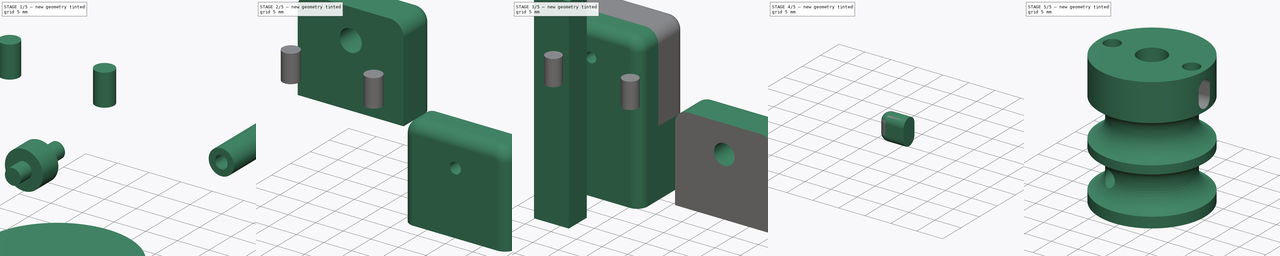
[diagram: build sequence overview — one tinted view per stage of 5, left to right]
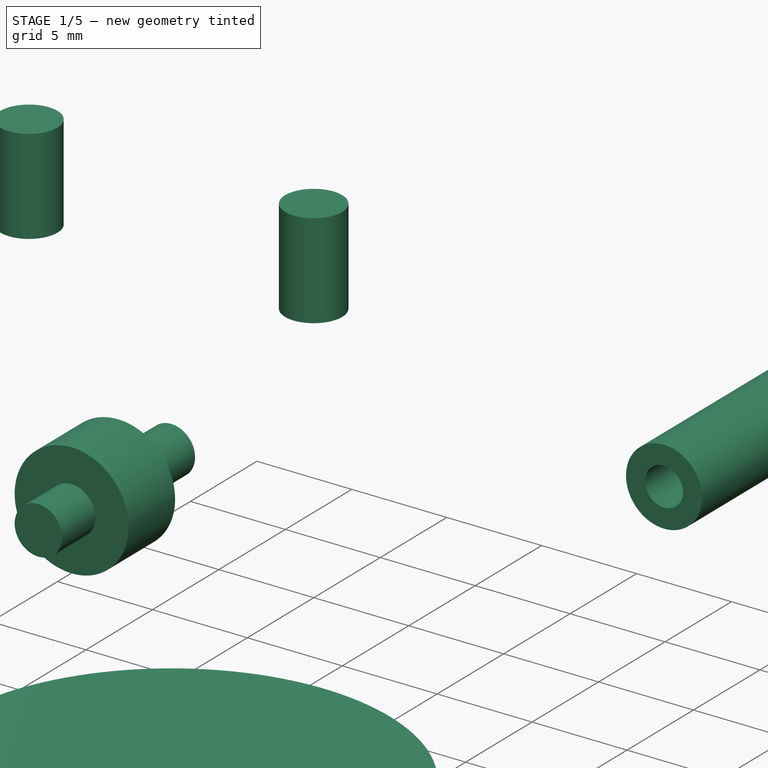
[diagram: stage 1 of 5 — iso view after this stage's code; geometry added in this stage tinted green]
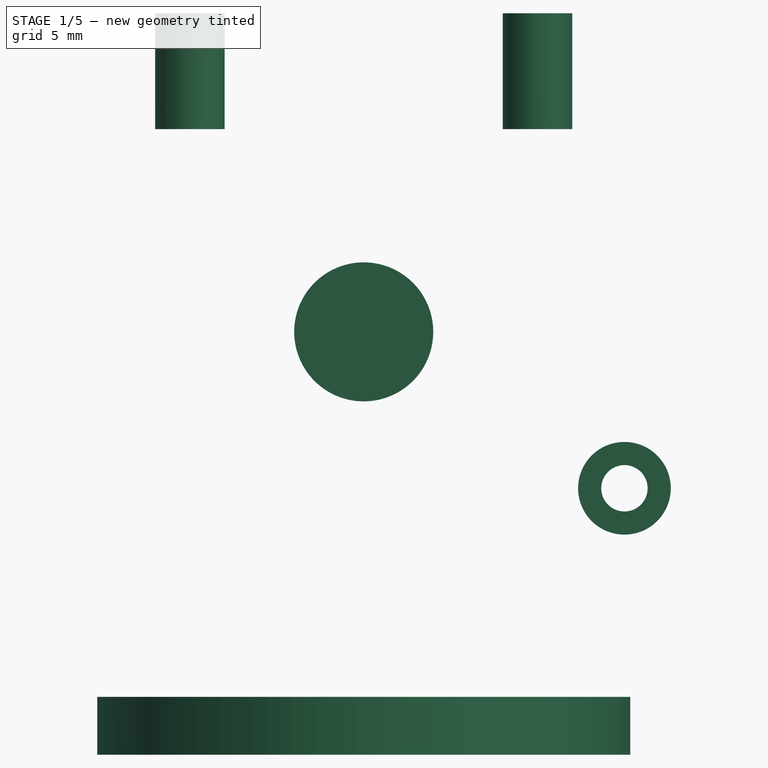
[diagram: stage 1 of 5 — front view after this stage's code; geometry added in this stage tinted green]
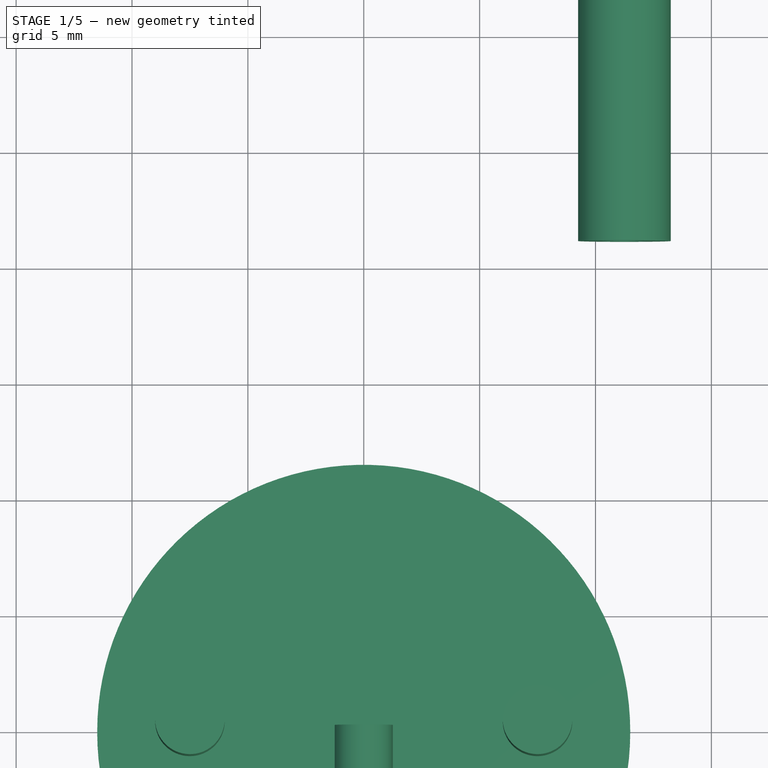
[diagram: stage 1 of 5 — top view after this stage's code; geometry added in this stage tinted green]
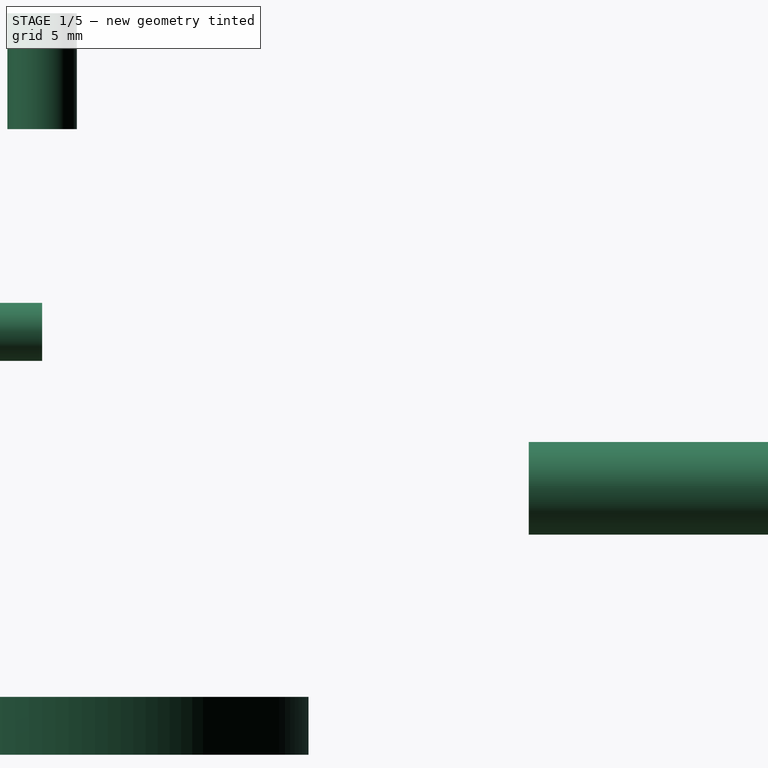
[diagram: stage 1 of 5 — right view after this stage's code; geometry added in this stage tinted green]
FCSTD DOCUMENT  (FreeCAD 0.20R29410 (Git))
Label: v2 boden actuator driver
License: All rights reserved
LicenseURL: http://en.wikipedia.org/wiki/All_rights_reserved
objects: Sketcher::SketchObject×17, Part::Extrusion×15, Part::Cut×7, Part::Fillet×7, Part::MultiFuse×4, Part::Revolution×2, Part::Feature×1, Part::FeaturePython×1, Part::Mirroring×1
note: 55 computed .brp shape members not serialized (recipe doc carries the construction recipe); baked Part::Feature solids carry a one-line shape summary decoded from their .brp

FEATURE [Part::Feature] Part__Feature005  label="nema 17x48 motor"
  shape: bbox 42.3 x 42.3 x 74 mm, 70 faces (baked)
FEATURE [Sketcher::SketchObject] Sketch
  ExternalGeometry = -> [Part__Feature005]
  FullyConstrained = true
  Placement = pos=(0,0,0) rot=(1,0,0;1.5708rad)
  sketch-geometry (11):
    g0: LineSegment StartX=2.5 StartY=7 StartZ=0 EndX=2.5 EndY=26 EndZ=0
    g1: LineSegment StartX=2.5 StartY=7 StartZ=0 EndX=11.25 EndY=7 EndZ=0
    g2: LineSegment StartX=0 StartY=31 StartZ=0 EndX=11.25 EndY=31 EndZ=0
    g3: LineSegment StartX=11.25 StartY=31 StartZ=0 EndX=11.25 EndY=27 EndZ=0
    g4: LineSegment StartX=11.25 StartY=7 StartZ=0 EndX=11.25 EndY=9.5 EndZ=0
    g5: LineSegment StartX=7.5 StartY=23.25 StartZ=0 EndX=7.5 EndY=13.25 EndZ=0
    g6: ArcOfCircle CenterX=11.25 CenterY=23.25 CenterZ=0 NormalX=0 NormalY=0 NormalZ=1 AngleXU=0 Radius=3.75 StartAngle=1.5708 EndAngle=3.14159
    g7: ArcOfCircle CenterX=11.25 CenterY=13.25 CenterZ=0 NormalX=0 NormalY=0 NormalZ=1 AngleXU=0 Radius=3.75 StartAngle=3.14159 EndAngle=4.71239
    g8: LineSegment StartX=0 StartY=31 StartZ=0 EndX=0 EndY=26.5 EndZ=0
    g9: LineSegment StartX=0 StartY=26.5 StartZ=0 EndX=2 EndY=26.5 EndZ=0
    g10: ArcOfCircle CenterX=2 CenterY=26 CenterZ=0 NormalX=0 NormalY=0 NormalZ=1 AngleXU=0 Radius=0.5 StartAngle=-2.7e-15 EndAngle=1.5708
  constraints (33):
    c: Vertical(g0)
    c: Coincident(g1,g0)
    c: Horizontal(g1)
    c: Horizontal(g2)
    c: Coincident(g3,g2)
    c: Vertical(g3)
    c: Coincident(g4,g1)
    c: Vertical(g4)
    c: Vertical(g5)
    c: Coincident(g6,g3)
    c: Coincident(g7,g4)
    c: Tangent(g7,g5) = -1.5708
    c: Tangent(g5,g6) = -1.5708
    c: PointOnObject(g6,g4)
    c: PointOnObject(g7,g4)
    c: PointOnObject(g6,g3)
    c: DistanceY(g4,g4) = 2.5
    c: Diameter(g7) = 7.5
    c: DistanceX(g0) = 2.5
    c: DistanceX(g-3) = -2.5
    c: DistanceY(g-4,g1) = 7
    c: DistanceX(g5) = 7.5
    c: DistanceY(g-3,g2) = 5
    c: PointOnObject(g2,g-2)
    c: Coincident(g8,g2)
    c: Vertical(g8)
    c: Coincident(g9,g8)
    c: Horizontal(g9)
    c: Tangent(g0,g10) = -1.5708
    c: Tangent(g9,g10) = 1.5708
    c: Diameter(g10) = 1
    c: PointOnObject(g0,g-3)
    c: DistanceY(g9,g3) = 0.5
FEATURE [Part::Revolution] Revolve
  Angle = 360
  Axis = (0,0,1)
  Base = (0,0,0)
  FaceMakerClass = Part::FaceMakerBullseye
  Solid = true
  Source = -> Sketch
  Symmetric = false
FEATURE [Sketcher::SketchObject] Sketch001
  ExternalGeometry = -> [Revolve]
  FullyConstrained = true
  Placement = pos=(0,0,0) rot=(1,0,0;1.5708rad)
  sketch-geometry (6):
    g0: LineSegment StartX=7.5 StartY=13.25 StartZ=0 EndX=7.5 EndY=23.25 EndZ=0
    g1: LineSegment StartX=7.5 StartY=23.25 StartZ=0 EndX=-7.5 EndY=23.25 EndZ=0
    g2: LineSegment StartX=-7.5 StartY=23.25 StartZ=0 EndX=-7.5 EndY=13.25 EndZ=0
    g3: LineSegment StartX=-7.5 StartY=13.25 StartZ=0 EndX=7.5 EndY=13.25 EndZ=0
    g4: GeomPoint X=5.87e-14 Y=18.25 Z=0
    g5: Circle CenterX=5.87e-14 CenterY=18.25 CenterZ=0 NormalX=0 NormalY=0 NormalZ=1 AngleXU=0 Radius=1.25
  constraints (13):
    c: Coincident(g0,g1)
    c: Coincident(g1,g2)
    c: Coincident(g2,g3)
    c: Coincident(g3,g0)
    c: Horizontal(g1)
    c: Horizontal(g3)
    c: Vertical(g0)
    c: Vertical(g2)
    c: Symmetric(g1,g0,g4)
    c: Coincident(g1,g-3)
    c: Coincident(g5,g4)
    c: Diameter(g5) = 2.5
    c: Coincident(g-4,g0)
FEATURE [Part::Extrusion] Extrude
  Base = -> Sketch001
  Dir = (0,-1,-3e-16)
  DirMode = 2
  FaceMakerClass = Part::FaceMakerBullseye
  LengthFwd = 10
  LengthRev = 0
  Solid = true
  Symmetric = false
FEATURE [Sketcher::SketchObject] Sketch002
  ExternalGeometry = -> [Revolve]
  FullyConstrained = true
  Placement = pos=(0,0,0) rot=(1,0,0;1.5708rad)
  sketch-geometry (6):
    g0: LineSegment StartX=7.5 StartY=13.25 StartZ=0 EndX=7.5 EndY=23.25 EndZ=0
    g1: LineSegment StartX=7.5 StartY=23.25 StartZ=0 EndX=-7.5 EndY=23.25 EndZ=0
    g2: LineSegment StartX=-7.5 StartY=23.25 StartZ=0 EndX=-7.5 EndY=13.25 EndZ=0
    g3: LineSegment StartX=-7.5 StartY=13.25 StartZ=0 EndX=7.5 EndY=13.25 EndZ=0
    g4: GeomPoint X=5.86e-14 Y=18.25 Z=0
    g5: Circle CenterX=5.86e-14 CenterY=18.25 CenterZ=0 NormalX=0 NormalY=0 NormalZ=1 AngleXU=0 Radius=3
  constraints (13):
    c: Coincident(g0,g1)
    c: Coincident(g1,g2)
    c: Coincident(g2,g3)
    c: Coincident(g3,g0)
    c: Horizontal(g1)
    c: Horizontal(g3)
    c: Vertical(g0)
    c: Vertical(g2)
    c: Symmetric(g1,g0,g4)
    c: Coincident(g1,g-3)
    c: Coincident(g5,g4)
    c: Diameter(g5) = 6
    c: Coincident(g-4,g0)
FEATURE [Part::Extrusion] Extrude001
  Base = -> Sketch002
  Dir = (0,-1,2e-16)
  DirMode = 2
  FaceMakerClass = Part::FaceMakerBullseye
  LengthFwd = 7.5
  LengthRev = -4
  Solid = true
  Symmetric = false
FEATURE [Part::MultiFuse] Fusion
  Shapes = -> [Extrude,Extrude001]
FEATURE [Sketcher::SketchObject] Sketch005
  FullyConstrained = true
  MapMode = 5
  Support = -> [Part__Feature005]
  sketch-geometry (1):
    g0: Circle CenterX=0 CenterY=0 CenterZ=0 NormalX=0 NormalY=0 NormalZ=1 AngleXU=0 Radius=11.5
  constraints (2):
    c: Coincident(g0,g-1)
    c: Diameter(g0) = 23
FEATURE [Part::Extrusion] Extrude003
  Base = -> Sketch005
  Dir = (0,0,1)
  DirMode = 2
  FaceMakerClass = Part::FaceMakerBullseye
  LengthFwd = 2.5
  LengthRev = 0
  Solid = true
  Symmetric = false
FEATURE [Part::FeaturePython] Tube  label="bike shift cable housing"  # WARN: FeaturePython — macro-defined, semantics opaque (R4)
  AttacherType = Attacher::AttachEngine3D
  Height = 20
  InnerRadius = 1
  OuterRadius = 2
  Placement = pos=(11.25,21,11.5) rot=(-1,0,0;1.5708rad)
FEATURE [Sketcher::SketchObject] Sketch026
  FullyConstrained = true
  sketch-geometry (4):
    g0: Circle CenterX=7.5 CenterY=0 CenterZ=0 NormalX=0 NormalY=0 NormalZ=1 AngleXU=0 Radius=1.5
    g1: Circle CenterX=-7.5 CenterY=0 CenterZ=0 NormalX=0 NormalY=0 NormalZ=1 AngleXU=0 Radius=1.5
    g2: LineSegment StartX=0 StartY=0 StartZ=0 EndX=7.5 EndY=0 EndZ=0
    g3: LineSegment StartX=0 StartY=0 StartZ=0 EndX=-7.5 EndY=0 EndZ=0
  constraints (10):
    c: PointOnObject(g0,g-1)
    c: PointOnObject(g1,g-1)
    c: Equal(g1,g0)
    c: Diameter(g1) = 3
    c: Coincident(g2,g-1)
    c: Coincident(g3,g2)
    c: Coincident(g3,g1)
    c: Coincident(g2,g0)
    c: Equal(g2,g3)
    c: DistanceX(g3,g3) = 7.5
FEATURE [Part::Extrusion] Extrude020
  Base = -> Sketch026
  Dir = (0,0,1)
  DirMode = 2
  FaceMakerClass = Part::FaceMakerBullseye
  LengthFwd = 0
  LengthRev = 5
  Placement = pos=(0,0,32) rot=(0,0,1;0rad)
  Solid = true
  Symmetric = false
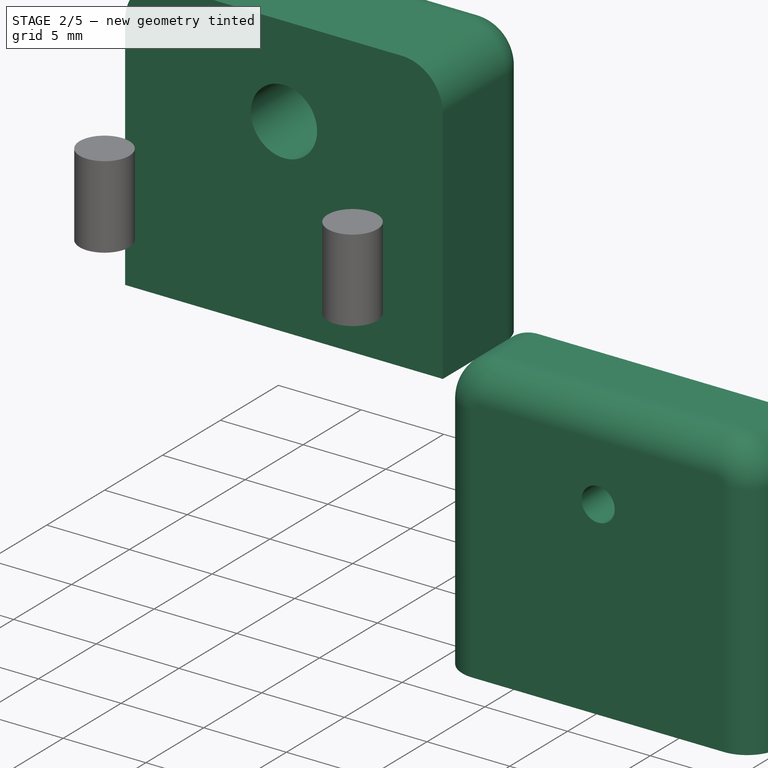
[diagram: stage 2 of 5 — iso view after this stage's code; geometry added in this stage tinted green]
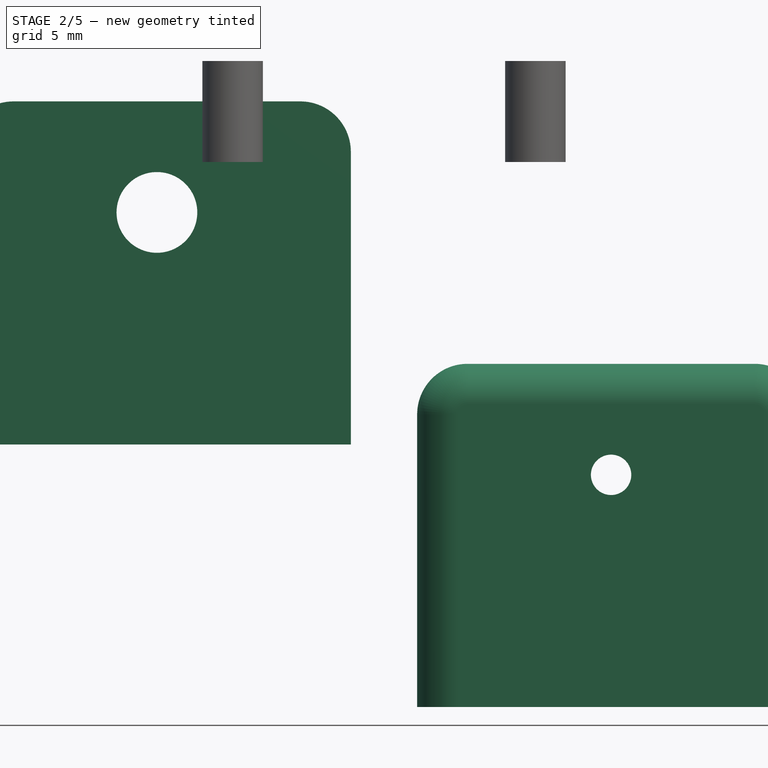
[diagram: stage 2 of 5 — front view after this stage's code; geometry added in this stage tinted green]
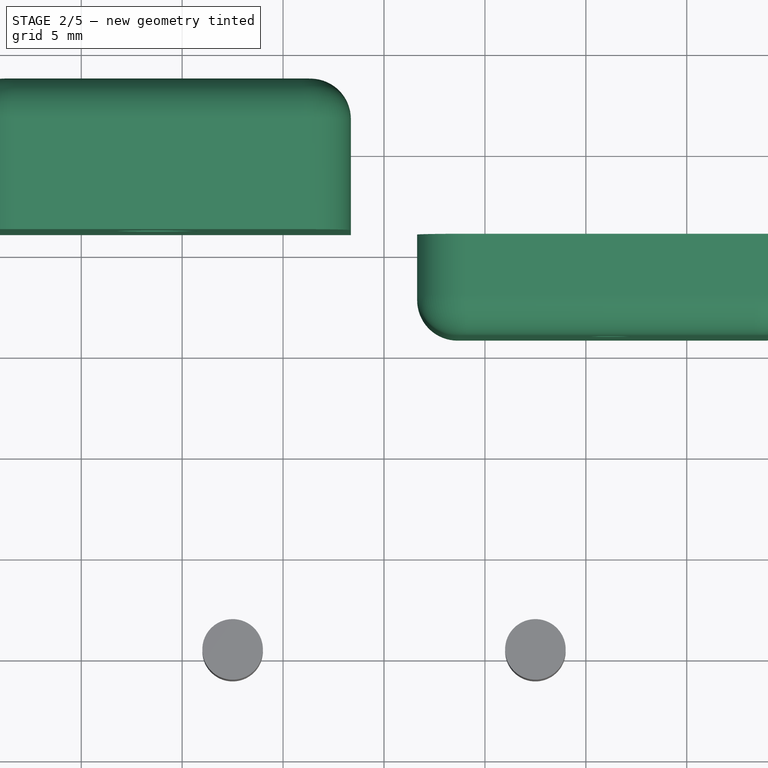
[diagram: stage 2 of 5 — top view after this stage's code; geometry added in this stage tinted green]
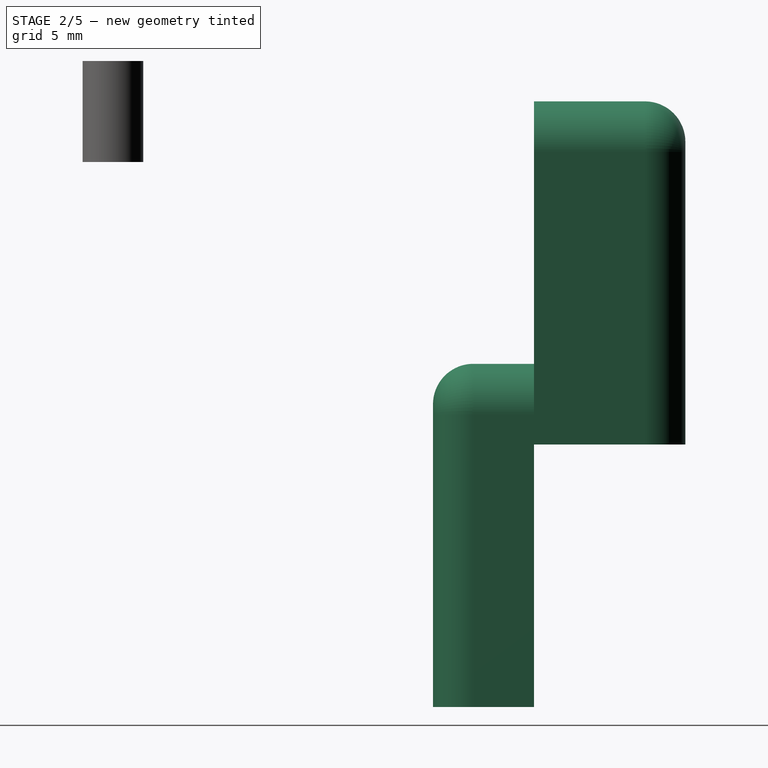
[diagram: stage 2 of 5 — right view after this stage's code; geometry added in this stage tinted green]
FEATURE [Part::Cut] Cut  label="nya"
  Base = -> Revolve
  Tool = -> Fusion
FEATURE [Part::Fillet] Fillet
  Base = -> Extrude003
  Edges = 1 edges r=1: [Edge3]
FEATURE [Sketcher::SketchObject] Sketch006
  ExternalGeometry = -> [Part__Feature005]
  FullyConstrained = false
  MapMode = 5
  Support = -> [Part__Feature005]
  sketch-geometry (20):
    g0: LineSegment StartX=15.5 StartY=-15.5 StartZ=0 EndX=15.5 EndY=15.5 EndZ=0
    g1: LineSegment StartX=15.5 StartY=15.5 StartZ=0 EndX=-15.5 EndY=15.5 EndZ=0
    g2: LineSegment StartX=-15.5 StartY=15.5 StartZ=0 EndX=-15.5 EndY=-15.5 EndZ=0
    g3: LineSegment StartX=-15.5 StartY=-15.5 StartZ=0 EndX=15.5 EndY=-15.5 EndZ=0
    g4: GeomPoint X=0 Y=0 Z=0
    g5: ArcOfCircle CenterX=-18.3571 CenterY=18.3571 CenterZ=0 NormalX=0 NormalY=0 NormalZ=1 AngleXU=0 Radius=2.5 StartAngle=1.5708 EndAngle=3.14159
    g6: LineSegment StartX=-18.3571 StartY=20.8571 StartZ=0 EndX=18.3571 EndY=20.8571 EndZ=0
    g7: ArcOfCircle CenterX=18.3571 CenterY=18.3571 CenterZ=0 NormalX=0 NormalY=0 NormalZ=1 AngleXU=0 Radius=2.5 StartAngle=3e-16 EndAngle=1.5708
    g8: LineSegment StartX=20.8571 StartY=18.3571 StartZ=0 EndX=20.8571 EndY=-18.3571 EndZ=0
    g9: ArcOfCircle CenterX=18.3571 CenterY=-18.3571 CenterZ=0 NormalX=0 NormalY=0 NormalZ=1 AngleXU=0 Radius=2.5 StartAngle=4.71239 EndAngle=6.28319
    g10: LineSegment StartX=18.3571 StartY=-20.8571 StartZ=0 EndX=-18.3571 EndY=-20.8571 EndZ=0
    g11: ArcOfCircle CenterX=-18.3571 CenterY=-18.3571 CenterZ=0 NormalX=0 NormalY=0 NormalZ=1 AngleXU=0 Radius=2.5 StartAngle=3.14159 EndAngle=4.71239
    g12: LineSegment StartX=-20.8571 StartY=-18.3571 StartZ=0 EndX=-20.8571 EndY=18.3571 EndZ=0
    g13: GeomPoint X=-20.8571 Y=20.8571 Z=0
    g14: GeomPoint X=20.8571 Y=-20.8571 Z=0
    g15: Circle CenterX=-15.5 CenterY=15.5 CenterZ=0 NormalX=0 NormalY=0 NormalZ=1 AngleXU=0 Radius=1.625
    g16: Circle CenterX=15.5 CenterY=15.5 CenterZ=0 NormalX=0 NormalY=0 NormalZ=1 AngleXU=0 Radius=1.625
    g17: Circle CenterX=-15.5 CenterY=-15.5 CenterZ=0 NormalX=0 NormalY=0 NormalZ=1 AngleXU=0 Radius=1.625
    g18: Circle CenterX=15.5 CenterY=-15.5 CenterZ=0 NormalX=0 NormalY=0 NormalZ=1 AngleXU=0 Radius=1.625
    g19: Circle CenterX=0 CenterY=0 CenterZ=0 NormalX=0 NormalY=0 NormalZ=1 AngleXU=0 Radius=5.5326
  constraints (43):
    c: Coincident(g0,g1)
    c: Coincident(g1,g2)
    c: Coincident(g2,g3)
    c: Coincident(g3,g0)
    c: Horizontal(g1)
    c: Horizontal(g3)
    c: Vertical(g0)
    c: Vertical(g2)
    c: Symmetric(g1,g0,g4)
    c: Coincident(g4,g-1)
    c: Coincident(g1,g-4)
    c: Tangent(g5,g6) = 1.5708
    c: Tangent(g6,g7) = 1.5708
    c: Tangent(g7,g8) = 1.5708
    c: Tangent(g8,g9) = 1.5708
    c: Tangent(g9,g10) = 1.5708
    c: Tangent(g10,g11) = 1.5708
    c: Tangent(g11,g12) = 1.5708
    c: Tangent(g12,g5) = 1.5708
    c: Horizontal(g6)
    c: Horizontal(g10)
    c: Vertical(g8)
    c: Vertical(g12)
    c: Equal(g5,g7)
    c: Equal(g7,g9)
    c: Equal(g9,g11)
    c: PointOnObject(g13,g6)
    c: PointOnObject(g13,g12)
    c: PointOnObject(g14,g8)
    c: PointOnObject(g14,g10)
    c: Diameter(g9) = 5
    c: PointOnObject(g-5,g10)
    c: PointOnObject(g-5,g8)
    c: PointOnObject(g-3,g6)
    c: PointOnObject(g-3,g12)
    c: Coincident(g15,g1)
    c: Coincident(g16,g0)
    c: Equal(g15,g16)
    c: Diameter(g15) = 3.25
    c: Equal(g17,g18)
    c: Diameter(g17) = 3.25
    c: Coincident(g2,g17)
    c: Coincident(g0,g18)
FEATURE [Part::Extrusion] Extrude002
  Base = -> Sketch006
  Dir = (0,0,1)
  DirMode = 2
  FaceMakerClass = Part::FaceMakerBullseye
  LengthFwd = 6
  LengthRev = 0
  Solid = true
  Symmetric = false
FEATURE [Part::Cut] Cut001  label="bracket base"
  Base = -> Extrude002
  Tool = -> Fillet
FEATURE [Sketcher::SketchObject] Sketch008
  ExternalGeometry = -> [Cut001,Cut]
  FullyConstrained = true
  MapMode = 5
  Placement = pos=(0,20.8571,0) rot=(0,0.707107,0.707107;3.14159rad)
  Support = -> [Cut001]
  sketch-geometry (11):
    g0: LineSegment StartX=-20.8571 StartY=14.5 StartZ=0 EndX=-20.8571 EndY=0 EndZ=0
    g1: LineSegment StartX=-20.8571 StartY=0 StartZ=0 EndX=-1.64289 EndY=0 EndZ=0
    g2: LineSegment StartX=-1.64289 StartY=0 StartZ=0 EndX=-1.64289 EndY=14.5 EndZ=0
    g3: LineSegment StartX=-4.14289 StartY=17 StartZ=0 EndX=-18.3571 EndY=17 EndZ=0
    g4: GeomPoint X=-11.25 Y=8.5 Z=0
    g5: GeomPoint X=-1.64289 Y=17 Z=0
    g6: GeomPoint X=-20.8571 Y=17 Z=0
    g7: Circle CenterX=-11.25 CenterY=11.5 CenterZ=0 NormalX=0 NormalY=0 NormalZ=1 AngleXU=0 Radius=1
    g8: LineSegment StartX=-11.25 StartY=11.5 StartZ=0 EndX=-11.25 EndY=8.5 EndZ=0
    g9: ArcOfCircle CenterX=-18.3571 CenterY=14.5 CenterZ=0 NormalX=0 NormalY=0 NormalZ=1 AngleXU=0 Radius=2.5 StartAngle=1.5708 EndAngle=3.14159
    g10: ArcOfCircle CenterX=-4.14289 CenterY=14.5 CenterZ=0 NormalX=0 NormalY=0 NormalZ=1 AngleXU=0 Radius=2.5 StartAngle=0 EndAngle=1.5708
  constraints (25):
    c: Coincident(g0,g1)
    c: Coincident(g1,g2)
    c: Horizontal(g1)
    c: Horizontal(g3)
    c: Vertical(g0)
    c: Vertical(g2)
    c: Symmetric(g1,g6,g4)
    c: PointOnObject(g5,g2)
    c: PointOnObject(g5,g3)
    c: PointOnObject(g6,g0)
    c: PointOnObject(g6,g3)
    c: Coincident(g8,g7)
    c: Coincident(g8,g4)
    c: Vertical(g8)
    c: DistanceY(g8,g8) = 3
    c: Diameter(g7) = 2
    c: Tangent(g9,g3) = -1.5708
    c: Tangent(g9,g0) = -1.5708
    c: Tangent(g2,g10) = -1.5708
    c: Tangent(g10,g3) = -1.5708
    c: Equal(g10,g9)
    c: Diameter(g9) = 5
    c: Coincident(g0,g-4)
    c: PointOnObject(g-5,g8)
    c: DistanceY(g-5,g4) = -1
FEATURE [Part::Extrusion] Extrude004
  Base = -> Sketch008
  Dir = (0,1,-2e-16)
  DirMode = 2
  FaceMakerClass = Part::FaceMakerBullseye
  LengthFwd = 0
  LengthRev = 5
  Solid = true
  Symmetric = false
FEATURE [Part::Fillet] Fillet001
  Base = -> Extrude004
  Edges = 1 edges r=2: [Edge17]
FEATURE [Sketcher::SketchObject] Sketch022
  ExternalGeometry = -> [Cut001,Cut,Tube]
  FullyConstrained = true
  MapMode = 5
  Placement = pos=(0,20.8571,0) rot=(0,0.707107,0.707107;3.14159rad)
  Support = -> [Cut001]
  sketch-geometry (11):
    g0: LineSegment StartX=-20.8571 StartY=14.5 StartZ=0 EndX=-20.8571 EndY=0 EndZ=0
    g1: LineSegment StartX=-20.8571 StartY=0 StartZ=0 EndX=-1.64289 EndY=0 EndZ=0
    g2: LineSegment StartX=-1.64289 StartY=0 StartZ=0 EndX=-1.64289 EndY=14.5 EndZ=0
    g3: LineSegment StartX=-4.14289 StartY=17 StartZ=0 EndX=-18.3571 EndY=17 EndZ=0
    g4: GeomPoint X=-11.25 Y=8.5 Z=0
    g5: GeomPoint X=-1.64289 Y=17 Z=0
    g6: GeomPoint X=-20.8571 Y=17 Z=0
    g7: Circle CenterX=-11.25 CenterY=11.5 CenterZ=0 NormalX=0 NormalY=0 NormalZ=1 AngleXU=0 Radius=2
    g8: LineSegment StartX=-11.25 StartY=11.5 StartZ=0 EndX=-11.25 EndY=8.5 EndZ=0
    g9: ArcOfCircle CenterX=-18.3571 CenterY=14.5 CenterZ=0 NormalX=0 NormalY=0 NormalZ=1 AngleXU=0 Radius=2.5 StartAngle=1.5708 EndAngle=3.14159
    g10: ArcOfCircle CenterX=-4.14289 CenterY=14.5 CenterZ=0 NormalX=0 NormalY=0 NormalZ=1 AngleXU=0 Radius=2.5 StartAngle=0 EndAngle=1.5708
  constraints (26):
    c: Coincident(g0,g1)
    c: Coincident(g1,g2)
    c: Horizontal(g1)
    c: Horizontal(g3)
    c: Vertical(g0)
    c: Vertical(g2)
    c: Symmetric(g1,g6,g4)
    c: PointOnObject(g5,g2)
    c: PointOnObject(g5,g3)
    c: PointOnObject(g6,g0)
    c: PointOnObject(g6,g3)
    c: Coincident(g8,g7)
    c: Coincident(g8,g4)
    c: Vertical(g8)
    c: DistanceY(g8,g8) = 3
    c: Diameter(g7) = 4
    c: Tangent(g9,g3) = -1.5708
    c: Tangent(g9,g0) = -1.5708
    c: Tangent(g2,g10) = -1.5708
    c: Tangent(g10,g3) = -1.5708
    c: Equal(g10,g9)
    c: Diameter(g9) = 5
    c: Coincident(g0,g-4)
    c: PointOnObject(g-5,g8)
    c: DistanceY(g-5,g4) = -1
    c: DistanceX(g-6,g7) = 0
FEATURE [Part::Extrusion] Extrude017
  Base = -> Sketch022
  Dir = (0,1,-2e-16)
  DirMode = 2
  FaceMakerClass = Part::FaceMakerBullseye
  LengthFwd = 7.5
  LengthRev = 0
  Solid = true
  Symmetric = false
FEATURE [Part::Fillet] Fillet008
  Base = -> Extrude017
  Edges = 1 edges r=2: [Edge18]
  Placement = pos=(-22.5,0,13) rot=(0,0,1;0rad)
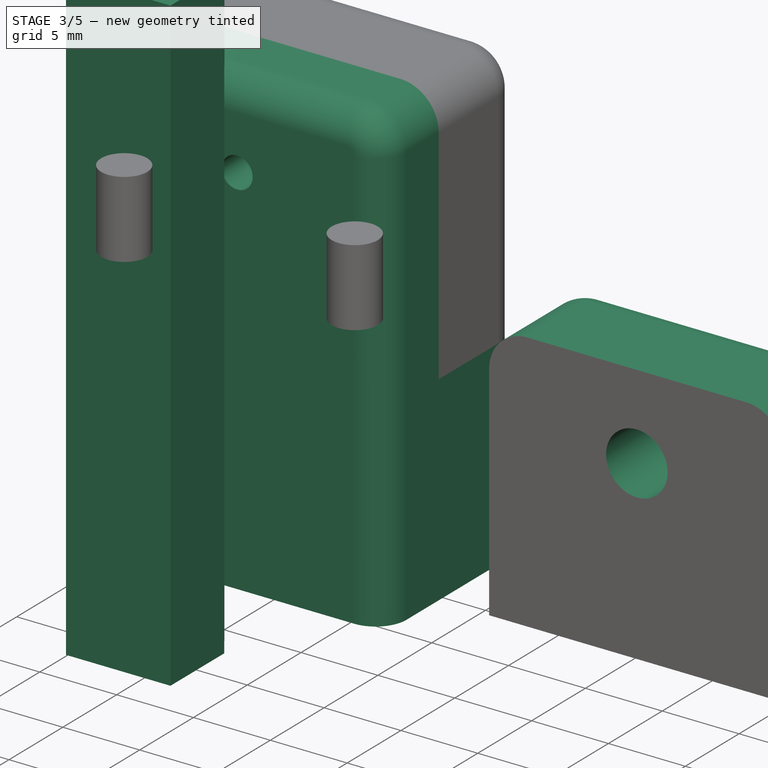
[diagram: stage 3 of 5 — iso view after this stage's code; geometry added in this stage tinted green]
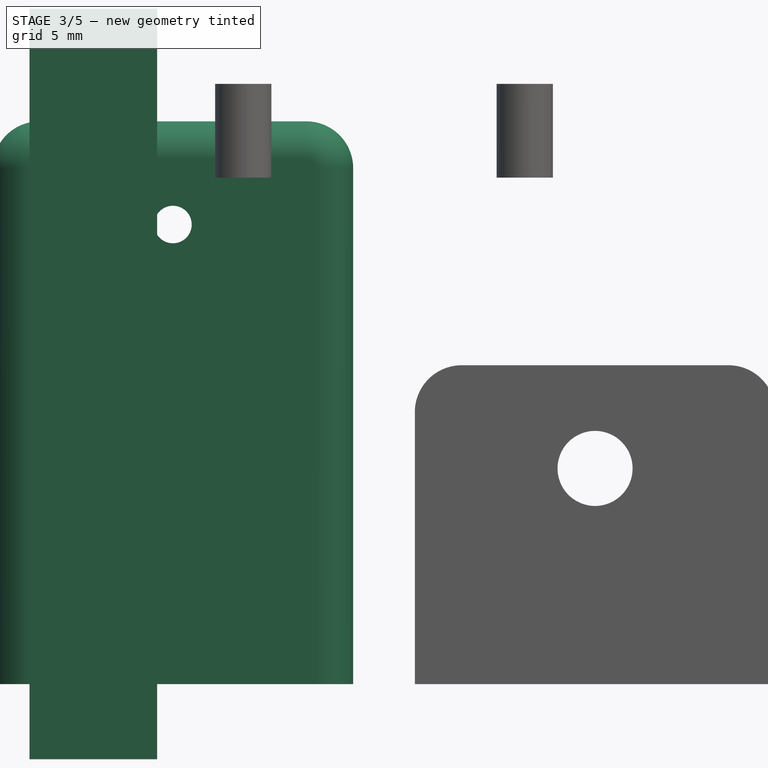
[diagram: stage 3 of 5 — front view after this stage's code; geometry added in this stage tinted green]
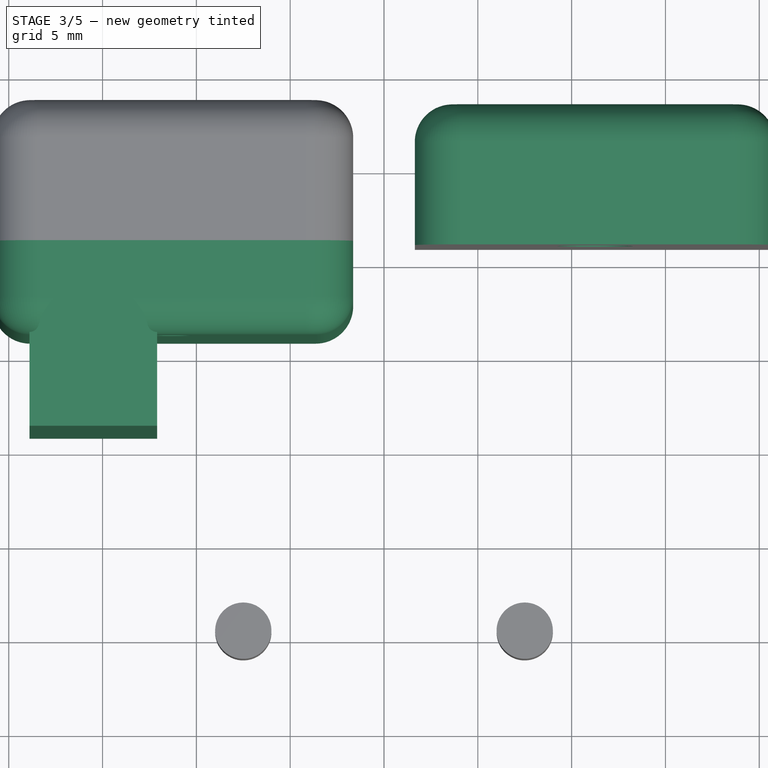
[diagram: stage 3 of 5 — top view after this stage's code; geometry added in this stage tinted green]
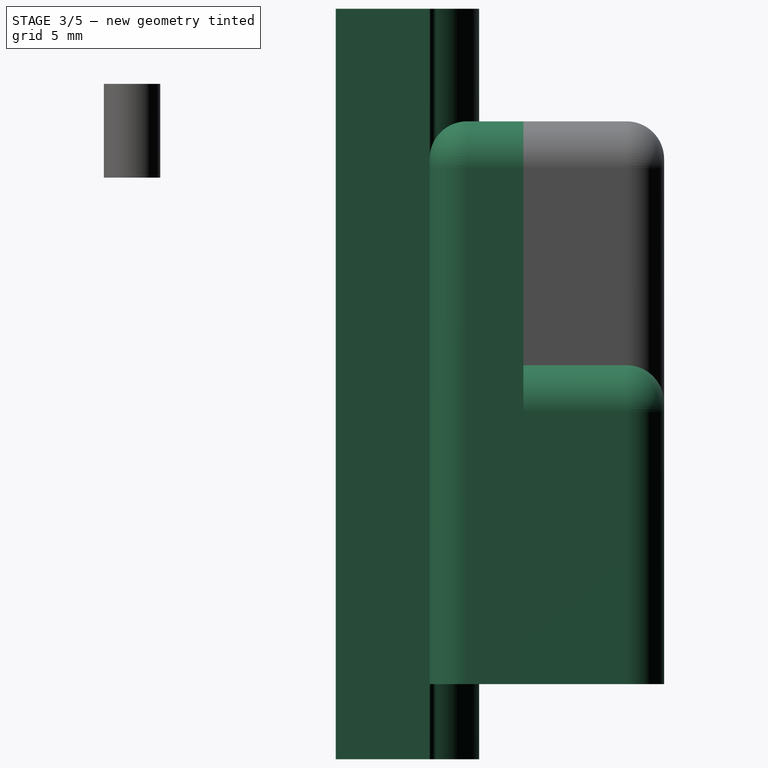
[diagram: stage 3 of 5 — right view after this stage's code; geometry added in this stage tinted green]
FEATURE [Sketcher::SketchObject] Sketch021
  ExternalGeometry = -> [Cut001,Cut]
  FullyConstrained = true
  MapMode = 5
  Placement = pos=(0,20.8571,0) rot=(0,0.707107,0.707107;3.14159rad)
  Support = -> [Cut001]
  sketch-geometry (11):
    g0: LineSegment StartX=-20.8571 StartY=14.5 StartZ=0 EndX=-20.8571 EndY=0 EndZ=0
    g1: LineSegment StartX=-20.8571 StartY=0 StartZ=0 EndX=-1.64289 EndY=0 EndZ=0
    g2: LineSegment StartX=-1.64289 StartY=0 StartZ=0 EndX=-1.64289 EndY=14.5 EndZ=0
    g3: LineSegment StartX=-4.14289 StartY=17 StartZ=0 EndX=-18.3571 EndY=17 EndZ=0
    g4: GeomPoint X=-11.25 Y=8.5 Z=0
    g5: GeomPoint X=-1.64289 Y=17 Z=0
    g6: GeomPoint X=-20.8571 Y=17 Z=0
    g7: Circle CenterX=-11.25 CenterY=11.5 CenterZ=0 NormalX=0 NormalY=0 NormalZ=1 AngleXU=0 Radius=1
    g8: LineSegment StartX=-11.25 StartY=11.5 StartZ=0 EndX=-11.25 EndY=8.5 EndZ=0
    g9: ArcOfCircle CenterX=-18.3571 CenterY=14.5 CenterZ=0 NormalX=0 NormalY=0 NormalZ=1 AngleXU=0 Radius=2.5 StartAngle=1.5708 EndAngle=3.14159
    g10: ArcOfCircle CenterX=-4.14289 CenterY=14.5 CenterZ=0 NormalX=0 NormalY=0 NormalZ=1 AngleXU=0 Radius=2.5 StartAngle=0 EndAngle=1.5708
  constraints (25):
    c: Coincident(g0,g1)
    c: Coincident(g1,g2)
    c: Horizontal(g1)
    c: Horizontal(g3)
    c: Vertical(g0)
    c: Vertical(g2)
    c: Symmetric(g1,g6,g4)
    c: PointOnObject(g5,g2)
    c: PointOnObject(g5,g3)
    c: PointOnObject(g6,g0)
    c: PointOnObject(g6,g3)
    c: Coincident(g8,g7)
    c: Coincident(g8,g4)
    c: Vertical(g8)
    c: DistanceY(g8,g8) = 3
    c: Diameter(g7) = 2
    c: Tangent(g9,g3) = -1.5708
    c: Tangent(g9,g0) = -1.5708
    c: Tangent(g2,g10) = -1.5708
    c: Tangent(g10,g3) = -1.5708
    c: Equal(g10,g9)
    c: Diameter(g9) = 5
    c: Coincident(g0,g-4)
    c: PointOnObject(g-5,g8)
    c: DistanceY(g-5,g4) = -1
FEATURE [Part::Extrusion] Extrude016
  Base = -> Sketch021
  Dir = (0,1,-2e-16)
  DirMode = 2
  FaceMakerClass = Part::FaceMakerBullseye
  LengthFwd = 0
  LengthRev = 5
  Solid = true
  Symmetric = false
FEATURE [Part::Fillet] Fillet007
  Base = -> Extrude016
  Edges = 1 edges r=2: [Edge17]
  Placement = pos=(-22.5,0,13) rot=(0,0,1;0rad)
FEATURE [Sketcher::SketchObject] Sketch024
  ExternalGeometry = -> [Cut001,Fillet001]
  FullyConstrained = true
  MapMode = 5
  Placement = pos=(0,0,6) rot=(0,0,1;0rad)
  Support = -> [Cut001]
  sketch-geometry (6):
    g0: ArcOfCircle CenterX=15.5 CenterY=15.5 CenterZ=0 NormalX=0 NormalY=0 NormalZ=1 AngleXU=0 Radius=3 StartAngle=0.247533 EndAngle=2.89419
    g1: ArcOfCircle CenterX=12.1066 CenterY=16.3571 CenterZ=0 NormalX=0 NormalY=0 NormalZ=1 AngleXU=0 Radius=0.5 StartAngle=4.71239 EndAngle=6.03578
    g2: ArcOfCircle CenterX=18.8933 CenterY=16.3575 CenterZ=0 NormalX=0 NormalY=0 NormalZ=1 AngleXU=0 Radius=0.5 StartAngle=3.38913 EndAngle=4.73653
    g3: LineSegment StartX=12.1066 StartY=15.8571 StartZ=0 EndX=12.1066 EndY=10.8571 EndZ=0
    g4: LineSegment StartX=12.1066 StartY=10.8571 StartZ=0 EndX=18.9054 EndY=10.8571 EndZ=0
    g5: LineSegment StartX=18.9054 StartY=15.8577 StartZ=0 EndX=18.9054 EndY=10.8571 EndZ=0
  constraints (17):
    c: DistanceY(g-6,g-4) = 0
    c: Coincident(g0,g-3)
    c: Equal(g2,g1)
    c: Tangent(g1,g-4) = -1.5708
    c: Tangent(g1,g0) = 1.5708
    c: Tangent(g2,g0) = 1.5708
    c: Diameter(g0) = 6
    c: Tangent(g2,g-6) = -1.5708
    c: Diameter(g2) = 1
    c: Coincident(g3,g1)
    c: Vertical(g3)
    c: Coincident(g4,g3)
    c: Horizontal(g4)
    c: Coincident(g5,g2)
    c: Coincident(g5,g4)
    c: Vertical(g5)
    c: DistanceY(g3,g3) = 5
FEATURE [Part::Extrusion] Extrude019
  Base = -> Sketch024
  Dir = (0,0,1)
  DirMode = 2
  FaceMakerClass = Part::FaceMakerBullseye
  LengthFwd = 20
  LengthRev = 20
  Placement = pos=(-31,0,10) rot=(0,0,1;0rad)
  Solid = true
  Symmetric = false
FEATURE [Sketcher::SketchObject] Sketch009
  ExternalGeometry = -> [Cut001,Cut,Tube]
  FullyConstrained = true
  MapMode = 5
  Placement = pos=(0,20.8571,0) rot=(0,0.707107,0.707107;3.14159rad)
  Support = -> [Cut001]
  sketch-geometry (11):
    g0: LineSegment StartX=-20.8571 StartY=14.5 StartZ=0 EndX=-20.8571 EndY=0 EndZ=0
    g1: LineSegment StartX=-20.8571 StartY=0 StartZ=0 EndX=-1.64289 EndY=0 EndZ=0
    g2: LineSegment StartX=-1.64289 StartY=0 StartZ=0 EndX=-1.64289 EndY=14.5 EndZ=0
    g3: LineSegment StartX=-4.14289 StartY=17 StartZ=0 EndX=-18.3571 EndY=17 EndZ=0
    g4: GeomPoint X=-11.25 Y=8.5 Z=0
    g5: GeomPoint X=-1.64289 Y=17 Z=0
    g6: GeomPoint X=-20.8571 Y=17 Z=0
    g7: Circle CenterX=-11.25 CenterY=11.5 CenterZ=0 NormalX=0 NormalY=0 NormalZ=1 AngleXU=0 Radius=2
    g8: LineSegment StartX=-11.25 StartY=11.5 StartZ=0 EndX=-11.25 EndY=8.5 EndZ=0
    g9: ArcOfCircle CenterX=-18.3571 CenterY=14.5 CenterZ=0 NormalX=0 NormalY=0 NormalZ=1 AngleXU=0 Radius=2.5 StartAngle=1.5708 EndAngle=3.14159
    g10: ArcOfCircle CenterX=-4.14289 CenterY=14.5 CenterZ=0 NormalX=0 NormalY=0 NormalZ=1 AngleXU=0 Radius=2.5 StartAngle=0 EndAngle=1.5708
  constraints (26):
    c: Coincident(g0,g1)
    c: Coincident(g1,g2)
    c: Horizontal(g1)
    c: Horizontal(g3)
    c: Vertical(g0)
    c: Vertical(g2)
    c: Symmetric(g1,g6,g4)
    c: PointOnObject(g5,g2)
    c: PointOnObject(g5,g3)
    c: PointOnObject(g6,g0)
    c: PointOnObject(g6,g3)
    c: Coincident(g8,g7)
    c: Coincident(g8,g4)
    c: Vertical(g8)
    c: DistanceY(g8,g8) = 3
    c: Diameter(g7) = 4
    c: Tangent(g9,g3) = -1.5708
    c: Tangent(g9,g0) = -1.5708
    c: Tangent(g2,g10) = -1.5708
    c: Tangent(g10,g3) = -1.5708
    c: Equal(g10,g9)
    c: Diameter(g9) = 5
    c: Coincident(g0,g-4)
    c: PointOnObject(g-5,g8)
    c: DistanceY(g-5,g4) = -1
    c: DistanceX(g-6,g7) = 0
FEATURE [Part::Extrusion] Extrude005
  Base = -> Sketch009
  Dir = (0,1,-2e-16)
  DirMode = 2
  FaceMakerClass = Part::FaceMakerBullseye
  LengthFwd = 7.5
  LengthRev = 0
  Solid = true
  Symmetric = false
FEATURE [Part::Fillet] Fillet002
  Base = -> Extrude005
  Edges = 1 edges r=2: [Edge18]
FEATURE [Sketcher::SketchObject] Sketch023
  ExternalGeometry = -> [Fillet008,Fillet007]
  FullyConstrained = true
  MapMode = 5
  Placement = pos=(-22.5,0,13) rot=(1,0,0;3.14159rad)
  Support = -> [Fillet008]
  sketch-geometry (10):
    g0: ArcOfCircle CenterX=3.64289 CenterY=-26.3571 CenterZ=0 NormalX=0 NormalY=0 NormalZ=1 AngleXU=0 Radius=2 StartAngle=3.14159 EndAngle=4.71239
    g1: LineSegment StartX=1.64289 StartY=-26.3571 StartZ=0 EndX=1.64289 EndY=-17.8571 EndZ=0
    g2: ArcOfCircle CenterX=3.64289 CenterY=-17.8571 CenterZ=0 NormalX=0 NormalY=0 NormalZ=1 AngleXU=0 Radius=2 StartAngle=1.5708 EndAngle=3.14159
    g3: LineSegment StartX=3.64289 StartY=-15.8571 StartZ=0 EndX=18.8571 EndY=-15.8571 EndZ=0
    g4: ArcOfCircle CenterX=18.8571 CenterY=-17.8571 CenterZ=0 NormalX=0 NormalY=0 NormalZ=1 AngleXU=0 Radius=2 StartAngle=4e-16 EndAngle=1.5708
    g5: LineSegment StartX=20.8571 StartY=-17.8571 StartZ=0 EndX=20.8571 EndY=-26.3571 EndZ=0
    g6: ArcOfCircle CenterX=18.8571 CenterY=-26.3571 CenterZ=0 NormalX=0 NormalY=0 NormalZ=1 AngleXU=0 Radius=2 StartAngle=4.71239 EndAngle=6.28319
    g7: LineSegment StartX=18.8571 StartY=-28.3571 StartZ=0 EndX=3.64289 EndY=-28.3571 EndZ=0
    g8: GeomPoint X=1.64289 Y=-28.3571 Z=0
    g9: GeomPoint X=20.8571 Y=-15.8571 Z=0
  constraints (22):
    c: Tangent(g0,g1) = 1.5708
    c: Tangent(g1,g2) = 1.5708
    c: Tangent(g2,g3) = 1.5708
    c: Tangent(g3,g4) = 1.5708
    c: Tangent(g4,g5) = 1.5708
    c: Tangent(g5,g6) = 1.5708
    c: Tangent(g6,g7) = 1.5708
    c: Tangent(g7,g0) = 1.5708
    c: Horizontal(g3)
    c: Horizontal(g7)
    c: Vertical(g1)
    c: Vertical(g5)
    c: Equal(g0,g2)
    c: Equal(g2,g4)
    c: Equal(g4,g6)
    c: PointOnObject(g8,g1)
    c: PointOnObject(g8,g7)
    c: PointOnObject(g9,g3)
    c: PointOnObject(g9,g5)
    c: Equal(g-4,g4)
    c: Coincident(g4,g-4)
    c: Coincident(g0,g-5)
FEATURE [Part::Extrusion] Extrude018
  Base = -> Sketch023
  Dir = (0,-2e-16,-1)
  DirMode = 2
  FaceMakerClass = Part::FaceMakerBullseye
  LengthFwd = 13
  LengthRev = 0
  Solid = true
  Symmetric = false
FEATURE [Part::MultiFuse] Fusion006
  Shapes = -> [Extrude018,Fillet008,Fillet007]
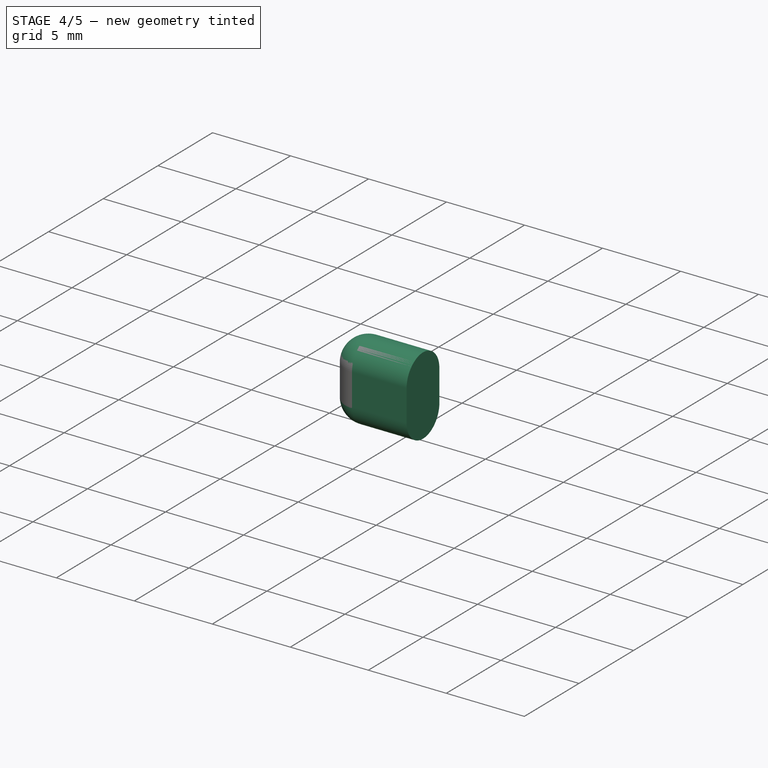
[diagram: stage 4 of 5 — iso view after this stage's code; geometry added in this stage tinted green]
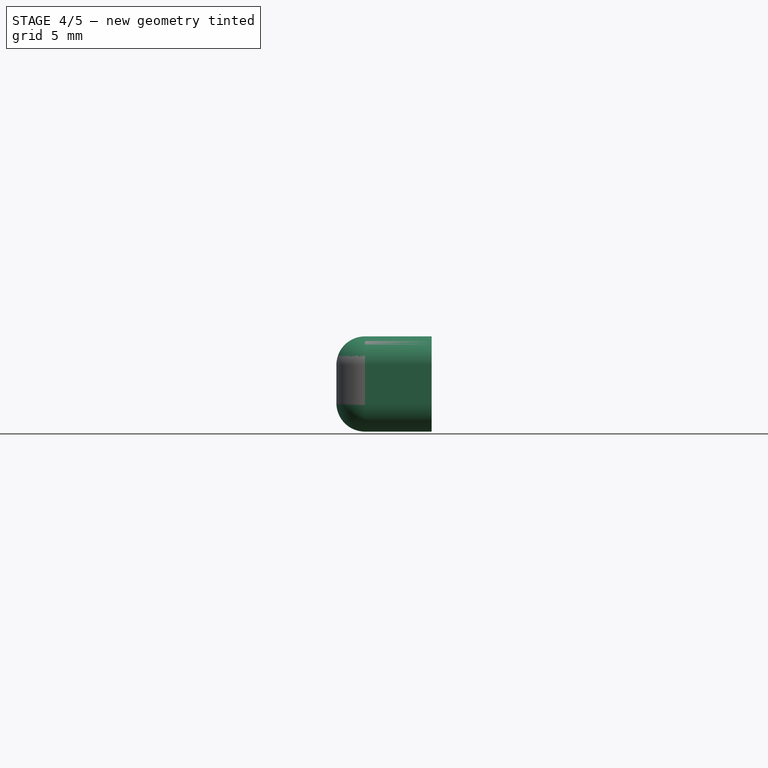
[diagram: stage 4 of 5 — front view after this stage's code; geometry added in this stage tinted green]
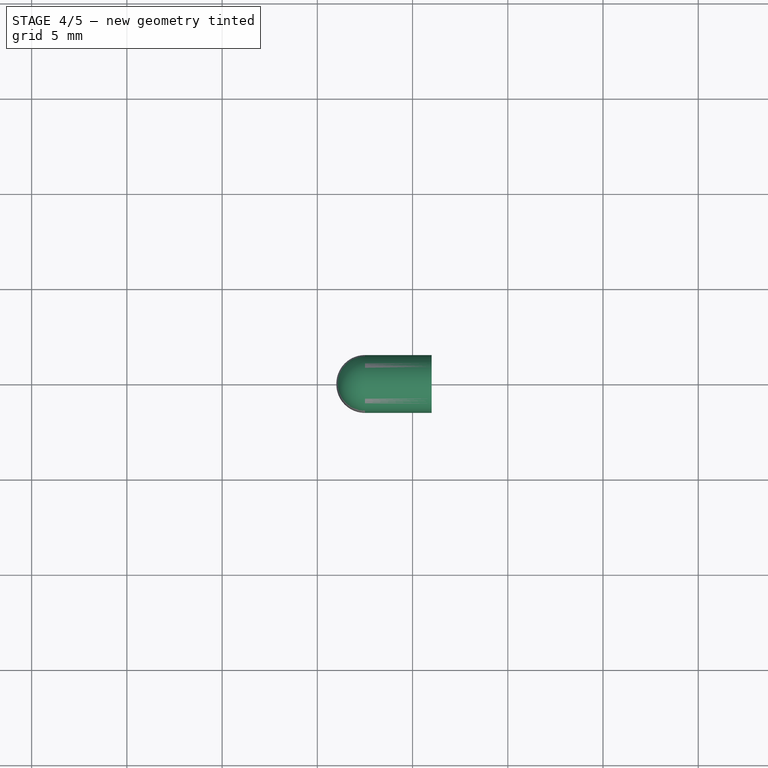
[diagram: stage 4 of 5 — top view after this stage's code; geometry added in this stage tinted green]
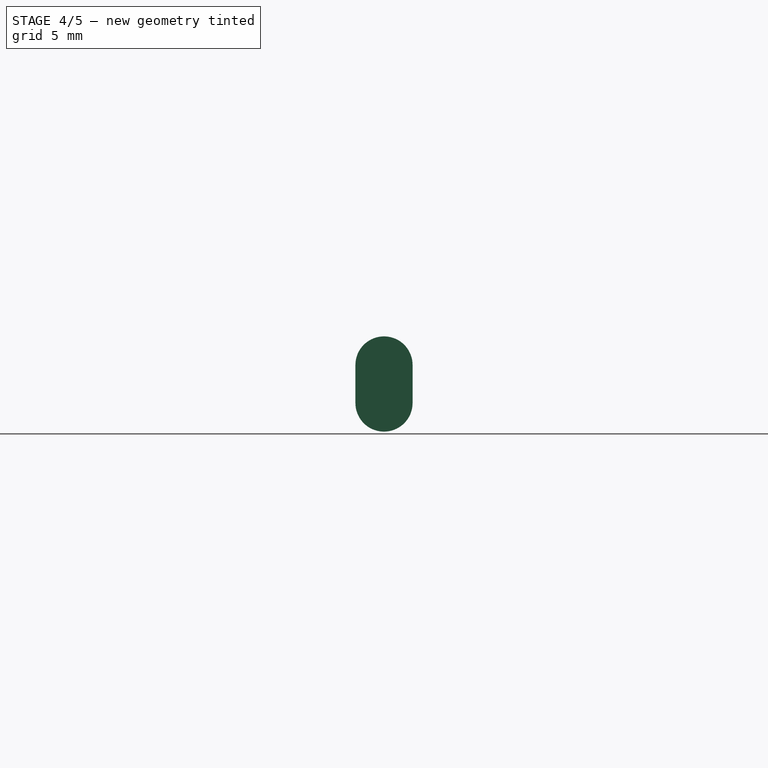
[diagram: stage 4 of 5 — right view after this stage's code; geometry added in this stage tinted green]
FEATURE [Sketcher::SketchObject] Sketch011
  ExternalGeometry = -> [Cut001,Fillet001]
  FullyConstrained = true
  MapMode = 5
  Placement = pos=(0,0,6) rot=(0,0,1;0rad)
  Support = -> [Cut001]
  sketch-geometry (6):
    g0: ArcOfCircle CenterX=15.5 CenterY=15.5 CenterZ=0 NormalX=0 NormalY=0 NormalZ=1 AngleXU=0 Radius=3 StartAngle=0.247533 EndAngle=2.89419
    g1: ArcOfCircle CenterX=12.1066 CenterY=16.3571 CenterZ=0 NormalX=0 NormalY=0 NormalZ=1 AngleXU=0 Radius=0.5 StartAngle=4.71239 EndAngle=6.03578
    g2: ArcOfCircle CenterX=18.8933 CenterY=16.3575 CenterZ=0 NormalX=0 NormalY=0 NormalZ=1 AngleXU=0 Radius=0.5 StartAngle=3.38913 EndAngle=4.73653
    g3: LineSegment StartX=12.1066 StartY=15.8571 StartZ=0 EndX=12.1066 EndY=10.8571 EndZ=0
    g4: LineSegment StartX=12.1066 StartY=10.8571 StartZ=0 EndX=18.9054 EndY=10.8571 EndZ=0
    g5: LineSegment StartX=18.9054 StartY=15.8577 StartZ=0 EndX=18.9054 EndY=10.8571 EndZ=0
  constraints (17):
    c: DistanceY(g-6,g-4) = 0
    c: Coincident(g0,g-3)
    c: Equal(g2,g1)
    c: Tangent(g1,g-4) = -1.5708
    c: Tangent(g1,g0) = 1.5708
    c: Tangent(g2,g0) = 1.5708
    c: Diameter(g0) = 6
    c: Tangent(g2,g-6) = -1.5708
    c: Diameter(g2) = 1
    c: Coincident(g3,g1)
    c: Vertical(g3)
    c: Coincident(g4,g3)
    c: Horizontal(g4)
    c: Coincident(g5,g2)
    c: Coincident(g5,g4)
    c: Vertical(g5)
    c: DistanceY(g3,g3) = 5
FEATURE [Part::Extrusion] Extrude007
  Base = -> Sketch011
  Dir = (0,0,1)
  DirMode = 2
  FaceMakerClass = Part::FaceMakerBullseye
  LengthFwd = 20
  LengthRev = 20
  Solid = true
  Symmetric = false
FEATURE [Part::Cut] Cut002
  Base = -> Fillet001
  Tool = -> Extrude007
FEATURE [Part::Cut] Cut005
  Base = -> Fusion006
  Tool = -> Extrude019
FEATURE [Part::MultiFuse] Fusion007  label="driver motor bracket"
  Shapes = -> [Fillet002,Cut005,Cut002,Cut001]
FEATURE [Sketcher::SketchObject] Sketch025
  ExternalGeometry = -> [Part__Feature005,Fusion007]
  FullyConstrained = true
  Placement = pos=(0,0,0) rot=(0.57735,0.57735,0.57735;2.0944rad)
  sketch-geometry (13):
    g0: LineSegment StartX=-2.65 StartY=27 StartZ=0 EndX=-2.65 EndY=7 EndZ=0
    g1: LineSegment StartX=-2.65 StartY=7 StartZ=0 EndX=-10 EndY=7 EndZ=0
    g2: LineSegment StartX=-10 StartY=7 StartZ=0 EndX=-10 EndY=9 EndZ=0
    g3: LineSegment StartX=-2.65 StartY=27 StartZ=0 EndX=-10 EndY=27 EndZ=0
    g4: LineSegment StartX=-10 StartY=27 StartZ=0 EndX=-10 EndY=25 EndZ=0
    g5: ArcOfCircle CenterX=-11 CenterY=21.3858 CenterZ=0 NormalX=0 NormalY=0 NormalZ=1 AngleXU=0 Radius=3.75 StartAngle=4.98232 EndAngle=7.58405
    g6: LineSegment StartX=-10 StartY=17.7716 StartZ=0 EndX=-10 EndY=16.2284 EndZ=0
    g7: ArcOfCircle CenterX=-11 CenterY=12.6142 CenterZ=0 NormalX=0 NormalY=0 NormalZ=1 AngleXU=0 Radius=3.75 StartAngle=4.98232 EndAngle=7.58405
    g8: LineSegment StartX=-10 StartY=32 StartZ=0 EndX=-2.65 EndY=32 EndZ=0
    g9: LineSegment StartX=-2.65 StartY=32 StartZ=0 EndX=-2.65 EndY=27 EndZ=0
    g10: LineSegment StartX=-2.65 StartY=27 StartZ=0 EndX=-10 EndY=27 EndZ=0
    g11: LineSegment StartX=-10 StartY=27 StartZ=0 EndX=-10 EndY=32 EndZ=0
    g12: GeomPoint X=-7.25 Y=21.3858 Z=0
  constraints (41):
    c: Vertical(g0)
    c: Coincident(g1,g0)
    c: Horizontal(g1)
    c: Coincident(g2,g1)
    c: Vertical(g2)
    c: Coincident(g3,g0)
    c: Horizontal(g3)
    c: Coincident(g4,g3)
    c: Vertical(g4)
    c: Coincident(g5,g4)
    c: Equal(g4,g2)
    c: Coincident(g6,g5)
    c: Vertical(g6)
    c: PointOnObject(g5,g4)
    c: Diameter(g5) = 7.5
    c: DistanceX(g5,g4) = 1
    c: Coincident(g7,g6)
    c: Coincident(g7,g2)
    c: Equal(g7,g5)
    c: DistanceX(g5,g7) = 0
    c: PointOnObject(g2,g6)
    c: DistanceY(g-4,g1) = 1
    c: DistanceY(g2,g2) = 2
    c: DistanceY(g-3,g0) = 1
    c: DistanceX(g-3,g-3) = 5
    c: DistanceX(g0,g-3) = 0.15
    c: DistanceX(g5) = -10
    c: Coincident(g8,g9)
    c: Coincident(g9,g10)
    c: Coincident(g10,g11)
    c: Coincident(g11,g8)
    c: Horizontal(g8)
    c: Horizontal(g10)
    c: Vertical(g9)
    c: Vertical(g11)
    c: Coincident(g11,g4)
    c: PointOnObject(g0,g9)
    c: DistanceY(g11,g11) = 5
    c: PointOnObject(g12,g5)
    c: DistanceY(g5,g12) = 0
    c: DistanceX(g12,g8) = 4.6
FEATURE [Part::Revolution] Revolve001
  Angle = 360
  Axis = (0,0,1)
  Base = (0,0,0)
  FaceMakerClass = Part::FaceMakerBullseye
  Solid = true
  Source = -> Sketch025
  Symmetric = false
FEATURE [Part::Cut] Cut006
  Base = -> Revolve001
  Tool = -> Extrude020
FEATURE [Sketcher::SketchObject] Sketch027
  ExternalGeometry = -> [Cut006]
  FullyConstrained = true
  Placement = pos=(0,0,0) rot=(0.57735,0.57735,0.57735;2.0944rad)
  sketch-geometry (4):
    g0: ArcOfCircle CenterX=0 CenterY=27 CenterZ=0 NormalX=0 NormalY=0 NormalZ=1 AngleXU=0 Radius=1.5 StartAngle=-9e-16 EndAngle=3.14159
    g1: ArcOfCircle CenterX=0 CenterY=25 CenterZ=0 NormalX=0 NormalY=0 NormalZ=1 AngleXU=0 Radius=1.5 StartAngle=3.14159 EndAngle=6.28319
    g2: LineSegment StartX=-1.5 StartY=27 StartZ=0 EndX=-1.5 EndY=25 EndZ=0
    g3: LineSegment StartX=1.5 StartY=25 StartZ=0 EndX=1.5 EndY=27 EndZ=0
  constraints (10):
    c: Tangent(g0,g2) = -1.5708
    c: Tangent(g2,g1) = -1.5708
    c: Tangent(g1,g3) = -1.5708
    c: Tangent(g3,g0) = -1.5708
    c: Equal(g0,g1)
    c: PointOnObject(g0,g-2)
    c: PointOnObject(g1,g-2)
    c: Diameter(g1) = 3
    c: DistanceY(g3,g3) = 2
    c: PointOnObject(g1,g-3)
FEATURE [Part::Extrusion] Extrude021
  Base = -> Sketch027
  Dir = (1,0,0)
  DirMode = 2
  FaceMakerClass = Part::FaceMakerBullseye
  LengthFwd = 5
  LengthRev = 0
  Placement = pos=(6,0,0) rot=(0,0,1;0rad)
  Solid = true
  Symmetric = false
FEATURE [Part::Fillet] Fillet009
  Base = -> Extrude021
  Edges = 1 edges r=1.4999: [Edge3]
  Placement = pos=(0,0,2) rot=(0,0,1;0rad)
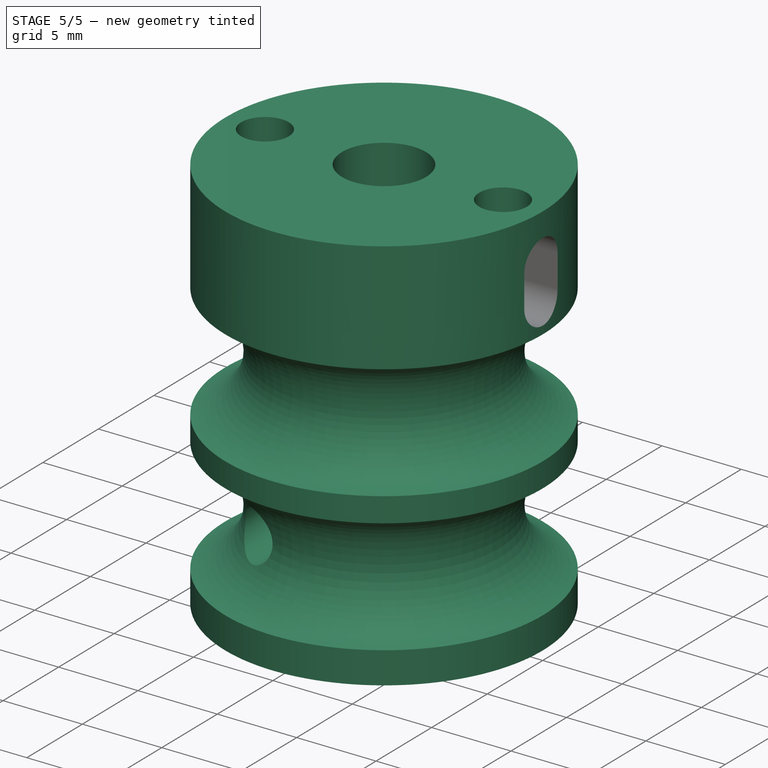
[diagram: stage 5 of 5 — iso view after this stage's code; geometry added in this stage tinted green]
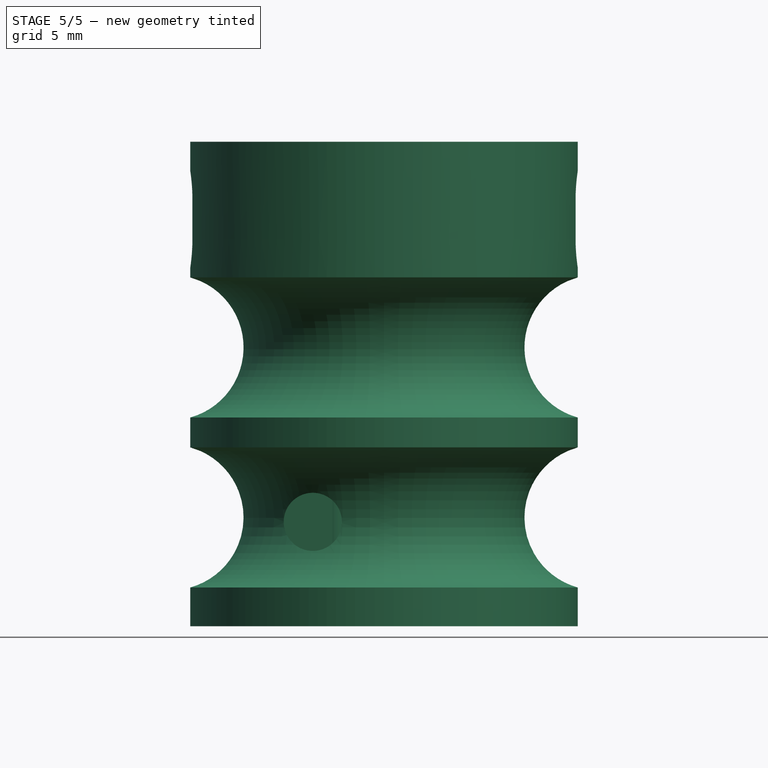
[diagram: stage 5 of 5 — front view after this stage's code; geometry added in this stage tinted green]
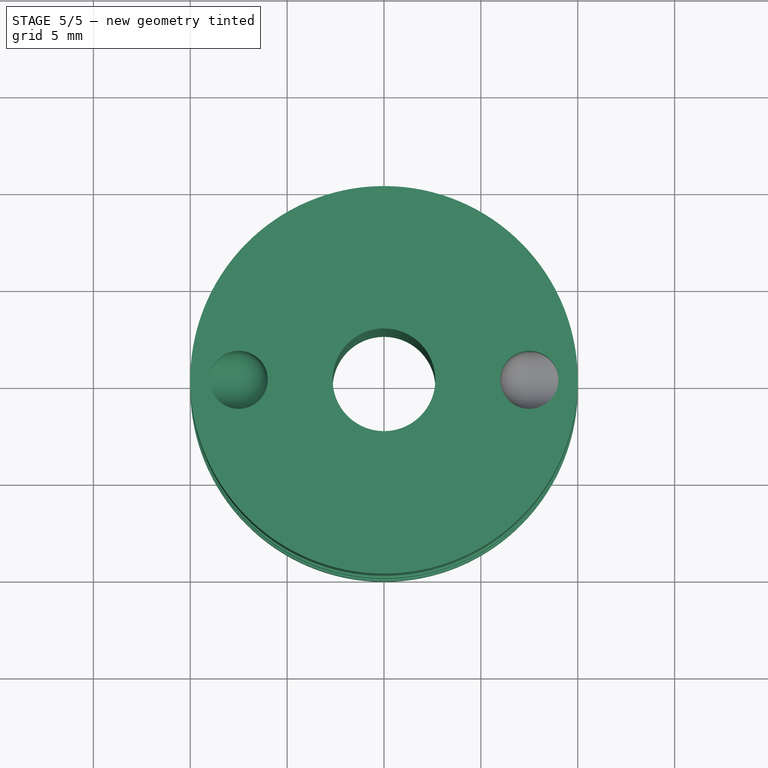
[diagram: stage 5 of 5 — top view after this stage's code; geometry added in this stage tinted green]
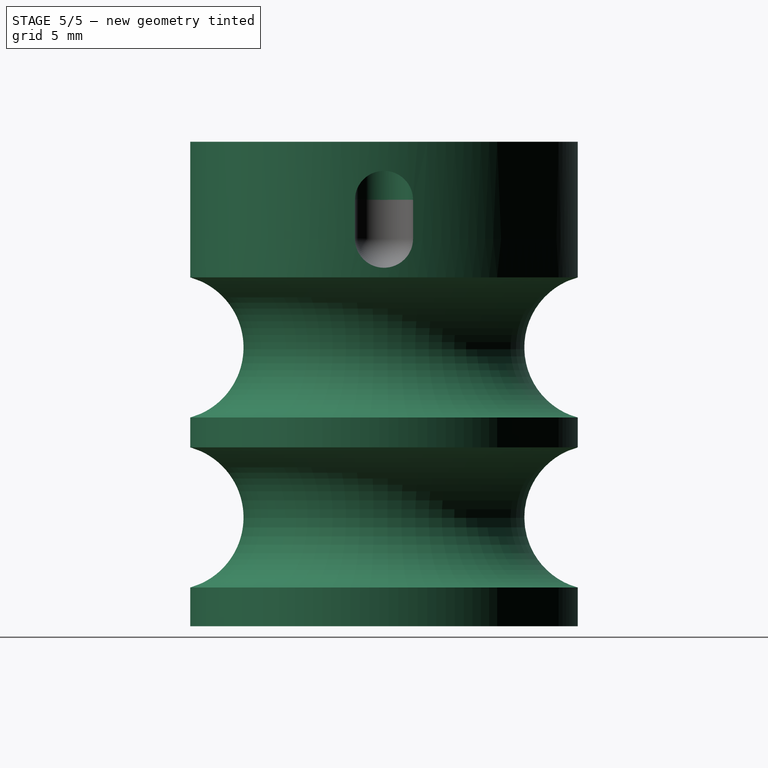
[diagram: stage 5 of 5 — right view after this stage's code; geometry added in this stage tinted green]
FEATURE [Sketcher::SketchObject] Sketch028
  ExternalGeometry = -> [Cut006]
  FullyConstrained = true
  Placement = pos=(0,0,0) rot=(0.57735,0.57735,0.57735;2.0944rad)
  sketch-geometry (4):
    g0: ArcOfCircle CenterX=0 CenterY=27 CenterZ=0 NormalX=0 NormalY=0 NormalZ=1 AngleXU=0 Radius=1.5 StartAngle=-9e-16 EndAngle=3.14159
    g1: ArcOfCircle CenterX=0 CenterY=25 CenterZ=0 NormalX=0 NormalY=0 NormalZ=1 AngleXU=0 Radius=1.5 StartAngle=3.14159 EndAngle=6.28319
    g2: LineSegment StartX=-1.5 StartY=27 StartZ=0 EndX=-1.5 EndY=25 EndZ=0
    g3: LineSegment StartX=1.5 StartY=25 StartZ=0 EndX=1.5 EndY=27 EndZ=0
  constraints (10):
    c: Tangent(g0,g2) = -1.5708
    c: Tangent(g2,g1) = -1.5708
    c: Tangent(g1,g3) = -1.5708
    c: Tangent(g3,g0) = -1.5708
    c: Equal(g0,g1)
    c: PointOnObject(g0,g-2)
    c: PointOnObject(g1,g-2)
    c: Diameter(g1) = 3
    c: DistanceY(g3,g3) = 2
    c: PointOnObject(g1,g-3)
FEATURE [Part::Extrusion] Extrude022
  Base = -> Sketch028
  Dir = (1,0,0)
  DirMode = 2
  FaceMakerClass = Part::FaceMakerBullseye
  LengthFwd = 5
  LengthRev = 0
  Placement = pos=(6,0,0) rot=(0,0,1;0rad)
  Solid = true
  Symmetric = false
FEATURE [Part::Fillet] Fillet010
  Base = -> Extrude022
  Edges = 1 edges r=1.4999: [Edge3]
  Placement = pos=(0,0,2) rot=(0,0,1;0rad)
FEATURE [Part::Mirroring] Part__Mirroring  label="Fillet009 (Mirror #1)"
  Base = (0,0,0)
  Normal = (1,0,0)
  Source = -> Fillet009
FEATURE [Part::MultiFuse] Fusion008
  Shapes = -> [Part__Mirroring,Fillet010]
FEATURE [Part::Cut] Cut007
  Base = -> Cut006
  Tool = -> Fusion008
FEATURE [Sketcher::SketchObject] Sketch029
  ExternalGeometry = -> [Cut007]
  FullyConstrained = true
  Placement = pos=(0,0,0) rot=(1,0,0;1.5708rad)
  sketch-geometry (6):
    g0: LineSegment StartX=2.65 StartY=7 StartZ=0 EndX=2.65 EndY=17.7716 EndZ=0
    g1: LineSegment StartX=2.65 StartY=17.7716 StartZ=0 EndX=-10 EndY=17.7716 EndZ=0
    g2: LineSegment StartX=-10 StartY=17.7716 StartZ=0 EndX=-10 EndY=7 EndZ=0
    g3: LineSegment StartX=-10 StartY=7 StartZ=0 EndX=2.65 EndY=7 EndZ=0
    g4: GeomPoint X=-3.675 Y=12.3858 Z=0
    g5: Circle CenterX=-3.675 CenterY=12.3858 CenterZ=0 NormalX=0 NormalY=0 NormalZ=1 AngleXU=0 Radius=1.5
  constraints (13):
    c: Coincident(g0,g1)
    c: Coincident(g1,g2)
    c: Coincident(g2,g3)
    c: Coincident(g3,g0)
    c: Horizontal(g1)
    c: Horizontal(g3)
    c: Vertical(g0)
    c: Vertical(g2)
    c: Symmetric(g1,g0,g4)
    c: Coincident(g1,g-3)
    c: Coincident(g0,g-4)
    c: Coincident(g5,g4)
    c: Diameter(g5) = 3
FEATURE [Part::Extrusion] Extrude023
  Base = -> Sketch029
  Dir = (0,-1,2e-16)
  DirMode = 2
  FaceMakerClass = Part::FaceMakerBullseye
  LengthFwd = 20
  LengthRev = 0
  Solid = true
  Symmetric = false
FEATURE [Part::Cut] Cut008
  Base = -> Cut007
  Tool = -> Extrude023
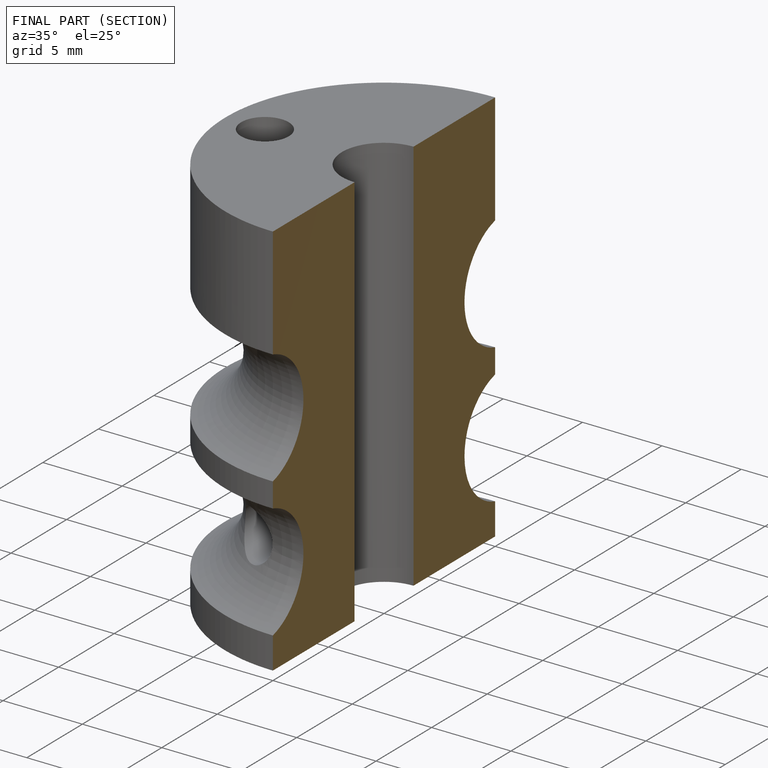
[diagram: finished part — half-section view (interior)]
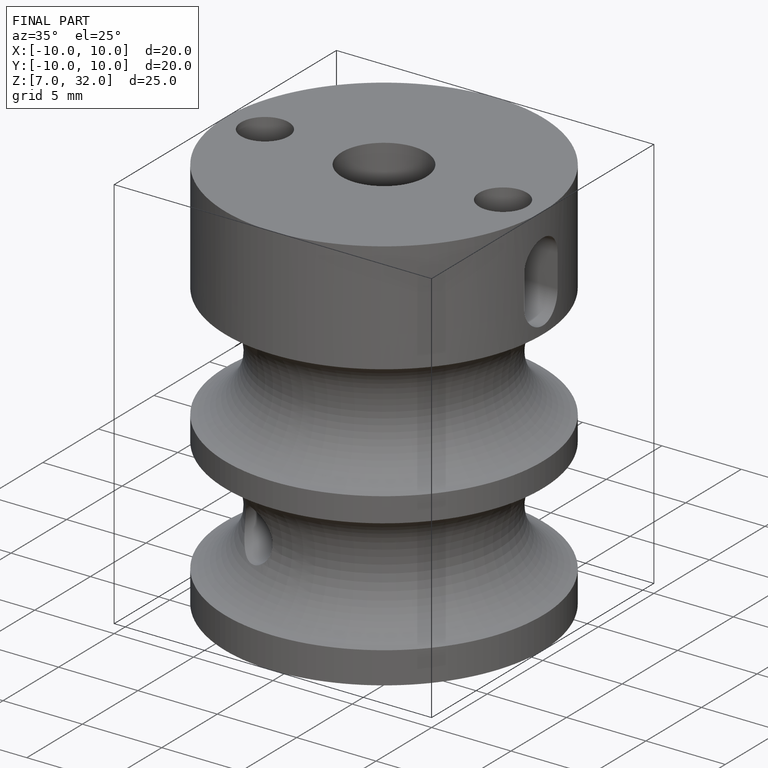
[diagram: finished part — iso view with bounding-box wireframe]
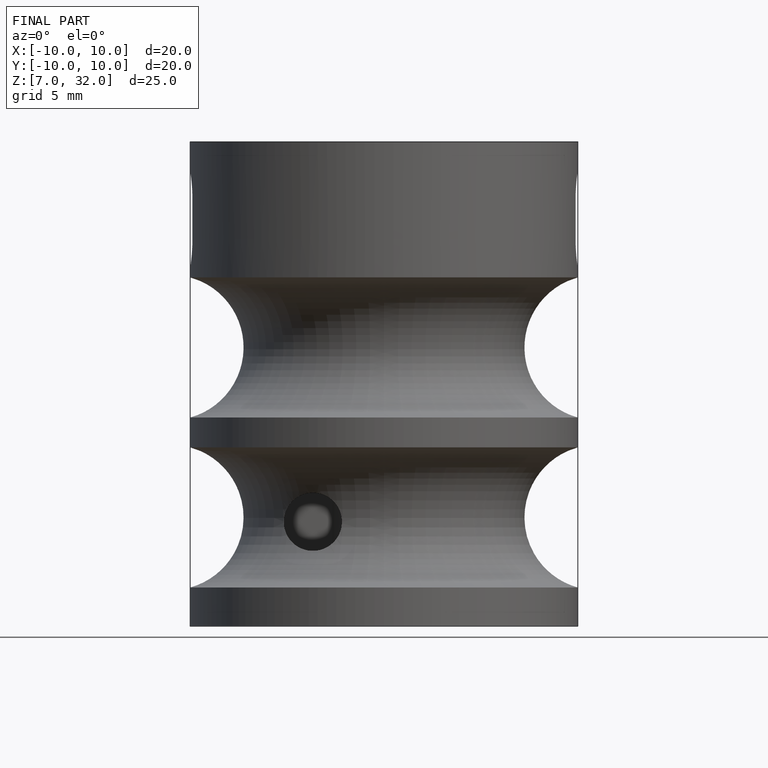
[diagram: finished part — front view with bounding-box wireframe]
